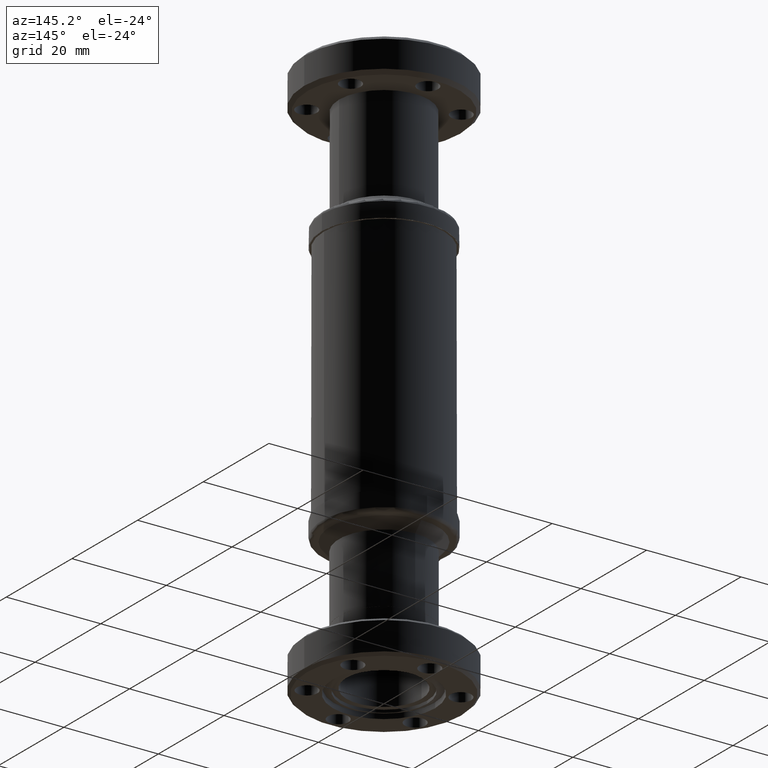
[diagram: clean part render]
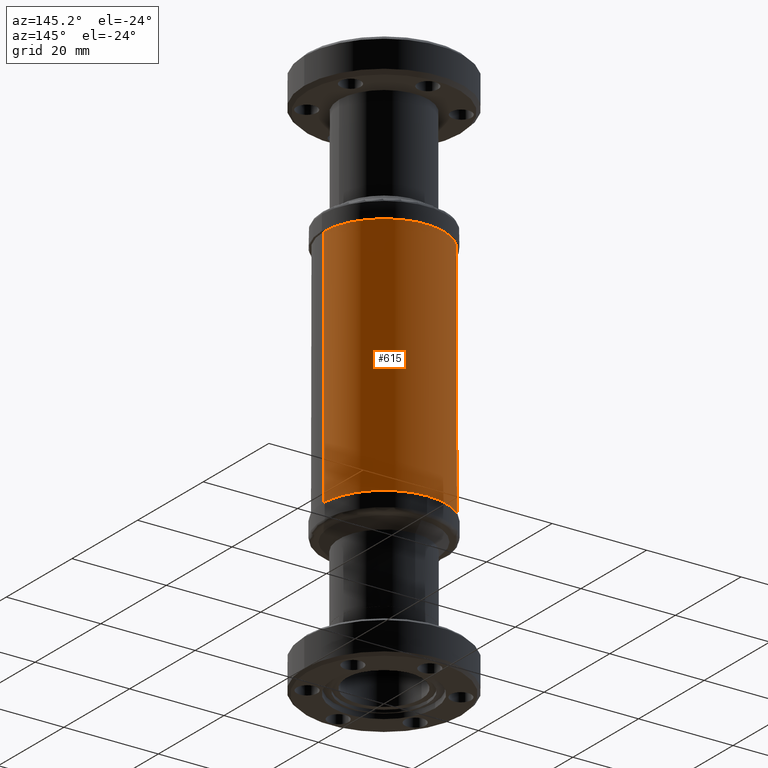
[diagram: same view with one face highlighted and labeled with its STEP entity id]
A machine part, auxiliary view. The second image highlights one B-rep face of the part: STEP entity #615.
In plain terms, the highlighted cylindrical surface (partial cylindrical patch) has radius 12.7 mm, axis along (-0, -0, -1).
Its self-contained STEP definition (entity closure, byte-faithful):
#155 = VECTOR ( 'NONE', #2341, 39.37007874015748100 ) ;
#183 = LINE ( 'NONE', #2342, #155 ) ;
#201 = CIRCLE ( 'NONE', #856, 0.5000000000000000000 ) ;
#311 = CIRCLE ( 'NONE', #849, 0.5000000000000000000 ) ;
#464 = EDGE_CURVE ( 'NONE', #3266, #3328, #201, .T. ) ;
#468 = EDGE_CURVE ( 'NONE', #3951, #3266, #183, .T. ) ;
#473 = EDGE_CURVE ( 'NONE', #3252, #3951, #311, .T. ) ;
#615 = ADVANCED_FACE ( 'NONE', ( #3813 ), #3809, .T. ) ;
#849 = AXIS2_PLACEMENT_3D ( 'NONE', #2284, #2283, #2282 ) ;
#856 = AXIS2_PLACEMENT_3D ( 'NONE', #2354, #2353, #2352 ) ;
#1000 = CARTESIAN_POINT ( 'NONE',  ( -0.5000000000000000000, 0.0000000000000000000, 0.05900394275394277300 ) ) ;
#1087 = CARTESIAN_POINT ( 'NONE',  ( 0.5000000000000000000, 6.123233995736766000E-017, 0.05900394275394277300 ) ) ;
#1111 = CARTESIAN_POINT ( 'NONE',  ( -0.5000000000000000000, 0.0000000000000000000, 2.171334105084105700 ) ) ;
#1144 = CARTESIAN_POINT ( 'NONE',  ( 0.5000000000000000000, 6.123233995736766000E-017, 2.171334105084105700 ) ) ;
#1647 = DIRECTION ( 'NONE',  ( -0.0000000000000000000, -0.0000000000000000000, -1.000000000000000000 ) ) ;
#1663 = CARTESIAN_POINT ( 'NONE',  ( -0.5000000000000000000, 0.0000000000000000000, 2.299999999999999800 ) ) ;
#1771 = EDGE_CURVE ( 'NONE', #3252, #3328, #3585, .T. ) ;
#2282 = DIRECTION ( 'NONE',  ( -1.000000000000000000, 0.0000000000000000000, 0.0000000000000000000 ) ) ;
#2283 = DIRECTION ( 'NONE',  ( -0.0000000000000000000, -0.0000000000000000000, -1.000000000000000000 ) ) ;
#2284 = CARTESIAN_POINT ( 'NONE',  ( 0.0000000000000000000, 0.0000000000000000000, 2.171334105084105700 ) ) ;
#2341 = DIRECTION ( 'NONE',  ( -0.0000000000000000000, -0.0000000000000000000, -1.000000000000000000 ) ) ;
#2342 = CARTESIAN_POINT ( 'NONE',  ( 0.5000000000000000000, 6.123233995736766000E-017, 2.299999999999999800 ) ) ;
#2352 = DIRECTION ( 'NONE',  ( -1.000000000000000000, 0.0000000000000000000, 0.0000000000000000000 ) ) ;
#2353 = DIRECTION ( 'NONE',  ( 0.0000000000000000000, 0.0000000000000000000, 1.000000000000000000 ) ) ;
#2354 = CARTESIAN_POINT ( 'NONE',  ( 0.0000000000000000000, 0.0000000000000000000, 0.05900394275394277300 ) ) ;
#2669 = ORIENTED_EDGE ( 'NONE', *, *, #468, .T. ) ;
#2671 = ORIENTED_EDGE ( 'NONE', *, *, #473, .T. ) ;
#2672 = ORIENTED_EDGE ( 'NONE', *, *, #464, .T. ) ;
#2673 = ORIENTED_EDGE ( 'NONE', *, *, #1771, .F. ) ;
#3227 = EDGE_LOOP ( 'NONE', ( #2671, #2669, #2672, #2673 ) ) ;
#3252 = VERTEX_POINT ( 'NONE', #1111 ) ;
#3266 = VERTEX_POINT ( 'NONE', #1087 ) ;
#3328 = VERTEX_POINT ( 'NONE', #1000 ) ;
#3579 = VECTOR ( 'NONE', #1647, 39.37007874015748100 ) ;
#3585 = LINE ( 'NONE', #1663, #3579 ) ;
#3809 = CYLINDRICAL_SURFACE ( 'NONE', #4277, 0.5000000000000000000 ) ;
#3813 = FACE_OUTER_BOUND ( 'NONE', #3227, .T. ) ;
#3951 = VERTEX_POINT ( 'NONE', #1144 ) ;
#4277 = AXIS2_PLACEMENT_3D ( 'NONE', #5052, #5054, #5062 ) ;
#5052 = CARTESIAN_POINT ( 'NONE',  ( 0.0000000000000000000, 0.0000000000000000000, 2.299999999999999800 ) ) ;
#5054 = DIRECTION ( 'NONE',  ( -0.0000000000000000000, -0.0000000000000000000, -1.000000000000000000 ) ) ;
#5062 = DIRECTION ( 'NONE',  ( -1.000000000000000000, 0.0000000000000000000, 0.0000000000000000000 ) ) ;